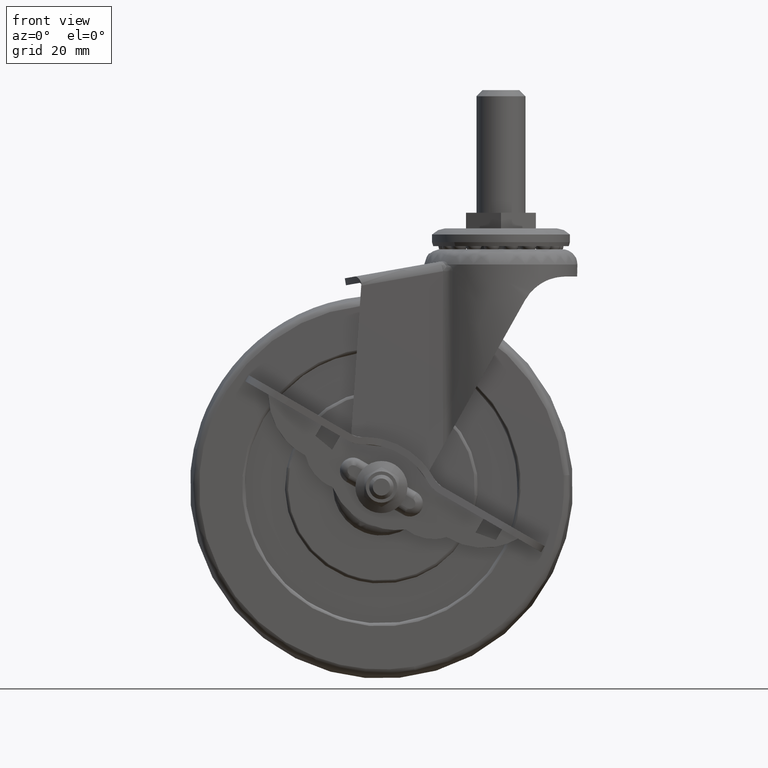
[diagram: clean part render]
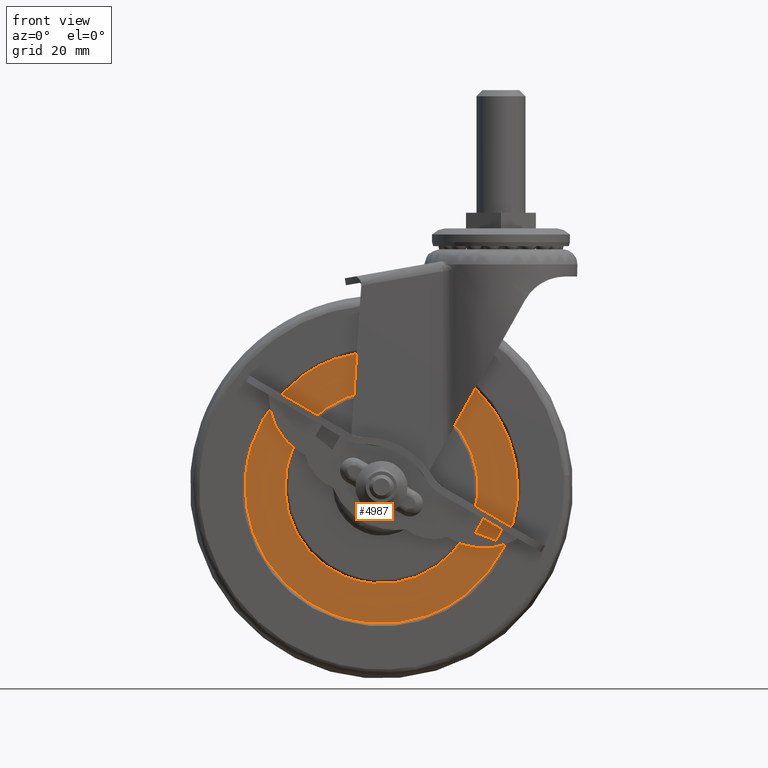
[diagram: same view with one face highlighted and labeled with its STEP entity id]
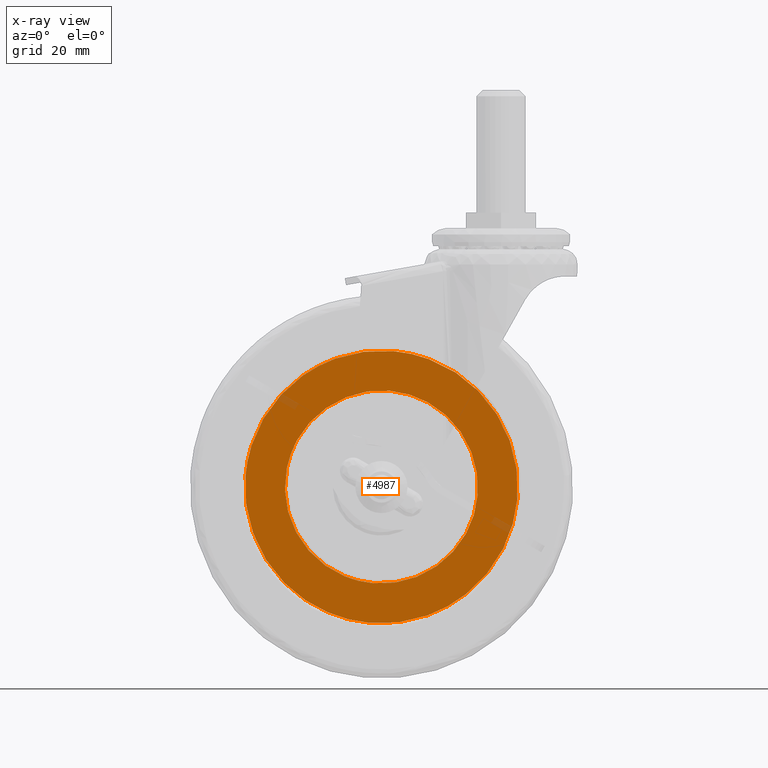
[diagram: x-ray of the same camera — body ghosted, the highlighted face saturated]
A machine part, front view. The second image highlights one B-rep face of the part: STEP entity #4987.
The next image is the same camera in x-ray: the body ghosted, the highlighted face saturated — about 1% of this face is hidden behind the body in this view.
In plain terms, the highlighted face is a freeform B-spline surface patch.
Its self-contained STEP definition (entity closure, byte-faithful):
#967=CARTESIAN_POINT('',(-28.735520388896450,-12.0,33.978225726691122));
#968=VERTEX_POINT('',#967);
#969=CARTESIAN_POINT('',(-44.499999999999950,-12.0,-0.000002025659692));
#970=VERTEX_POINT('',#969);
#971=CARTESIAN_POINT('',(-28.735520388896450,-12.0,33.978225726691122));
#972=CARTESIAN_POINT('',(-29.965539715013300,-12.0,32.938018118806532));
#973=CARTESIAN_POINT('',(-32.532487644261721,-12.0,30.516255705758009));
#974=CARTESIAN_POINT('',(-36.606650024262713,-12.000000000000020,25.637500820333479));
#975=CARTESIAN_POINT('',(-39.758474518303089,-11.999999999999940,20.334086307352070));
#976=CARTESIAN_POINT('',(-42.000666187192749,-12.000000000000030,14.934997992191120));
#977=CARTESIAN_POINT('',(-43.306283589695227,-11.999999999999989,10.589568166401699));
#978=CARTESIAN_POINT('',(-44.260392649026727,-11.999999999999890,5.537453177916100));
#979=CARTESIAN_POINT('',(-44.500080360819290,-12.000000000000210,2.013625735972551));
#980=CARTESIAN_POINT('',(-44.499999999999950,-12.0,-0.000002025659692));
#981=B_SPLINE_CURVE_WITH_KNOTS('',3,(#971,#972,#973,#974,#975,#976,#977,#978,#979,#980),.UNSPECIFIED.,.F.,.U.,(4,1,1,1,1,1,1,4),(0.000000030718532,4.832695679823040,10.571575844374820,19.028858759169861,23.257441116145831,28.090172418240059,32.620865823782083,38.661748231903132),.UNSPECIFIED.);
#982=EDGE_CURVE('',#968,#970,#981,.T.);
#1038=CARTESIAN_POINT('',(30.631778243611230,-12.000000000000011,-32.279159168495703));
#1039=VERTEX_POINT('',#1038);
#1045=CARTESIAN_POINT('',(0.0,-12.0,-44.500000000000000));
#1046=VERTEX_POINT('',#1045);
#1047=CARTESIAN_POINT('',(0.0,-12.0,-44.500000000000000));
#1048=CARTESIAN_POINT('',(2.727479434036369,-12.000000000000020,-44.500295298027403));
#1049=CARTESIAN_POINT('',(6.686564986491137,-11.999999999999980,-44.134819971370852));
#1050=CARTESIAN_POINT('',(12.265564513442420,-12.000000000000041,-42.855539010437852));
#1051=CARTESIAN_POINT('',(16.356506878100181,-11.999999999999931,-41.471537159714082));
#1052=CARTESIAN_POINT('',(20.999493749448501,-12.000000000000060,-39.342050800678393));
#1053=CARTESIAN_POINT('',(25.756969748588642,-11.999999999999959,-36.472671367850083));
#1054=CARTESIAN_POINT('',(29.036343591945538,-12.000000000000060,-33.793311748435393));
#1055=CARTESIAN_POINT('',(30.631778243611230,-12.000000000000011,-32.279159168495703));
#1056=B_SPLINE_CURVE_WITH_KNOTS('',3,(#1047,#1048,#1049,#1050,#1051,#1052,#1053,#1054,#1055),.UNSPECIFIED.,.F.,.U.,(4,1,1,1,1,1,4),(0.000000025192691,8.182366867825625,11.877635466500630,17.156545081447881,21.115785782338349,27.186582004520631,33.785260291606157),.UNSPECIFIED.);
#1057=EDGE_CURVE('',#1046,#1039,#1056,.T.);
#1059=CARTESIAN_POINT('',(-44.499999999999950,-12.0,-0.000002025659692));
#1060=CARTESIAN_POINT('',(-44.500787939339702,-11.999999999999970,-3.458690966359215));
#1061=CARTESIAN_POINT('',(-43.817293084576377,-12.000000000000060,-9.283347984711762));
#1062=CARTESIAN_POINT('',(-41.371711392569743,-11.999999999999909,-16.841196439660902));
#1063=CARTESIAN_POINT('',(-38.680561582878532,-12.000000000000041,-22.228479020489239));
#1064=CARTESIAN_POINT('',(-35.505162946347468,-11.999999999999959,-27.012376599666570));
#1065=CARTESIAN_POINT('',(-31.289106103476001,-12.000000000000030,-31.930968309895920));
#1066=CARTESIAN_POINT('',(-25.467613343913861,-12.000000000000050,-36.798891241400483));
#1067=CARTESIAN_POINT('',(-18.857115077663192,-11.999999999999909,-40.516760081781378));
#1068=CARTESIAN_POINT('',(-12.349703858232321,-11.999999999999959,-42.912831426846360));
#1069=CARTESIAN_POINT('',(-6.189072149615090,-12.000000000000050,-44.216991347357798));
#1070=CARTESIAN_POINT('',(-2.002350392535339,-11.999999999999989,-44.500071016976648));
#1071=CARTESIAN_POINT('',(0.0,-12.0,-44.500000000000000));
#1072=B_SPLINE_CURVE_WITH_KNOTS('',3,(#1059,#1060,#1061,#1062,#1063,#1064,#1065,#1066,#1067,#1068,#1069,#1070,#1071),.UNSPECIFIED.,.F.,.U.,(4,1,1,1,1,1,1,1,1,1,4),(0.000000094294563,10.375858722465660,17.475137372663820,23.755293522343049,28.397143133958728,34.677285312516908,43.141700456231021,51.060162384410617,57.340314205787983,63.893492412745097,69.900545054172909),.UNSPECIFIED.);
#1073=EDGE_CURVE('',#970,#1046,#1072,.T.);
#1096=CARTESIAN_POINT('',(0.0,-12.0,44.500000000000000));
#1097=VERTEX_POINT('',#1096);
#1098=CARTESIAN_POINT('',(0.0,-12.0,44.500000000000000));
#1099=CARTESIAN_POINT('',(-3.172751960191040,-12.000000000000050,44.500603135920642));
#1100=CARTESIAN_POINT('',(-7.484109688765465,-11.999999999999950,44.036887618685739));
#1101=CARTESIAN_POINT('',(-13.160130746784789,-12.000000000000050,42.573611372753113));
#1102=CARTESIAN_POINT('',(-17.686803546340158,-11.999999999999860,40.958362971238252));
#1103=CARTESIAN_POINT('',(-23.150961942849619,-12.000000000000290,38.209039244866148));
#1104=CARTESIAN_POINT('',(-26.872150039924950,-11.999999999999890,35.554324625650793));
#1105=CARTESIAN_POINT('',(-28.735520388896450,-12.0,33.978225726691122));
#1106=B_SPLINE_CURVE_WITH_KNOTS('',3,(#1098,#1099,#1100,#1101,#1102,#1103,#1104,#1105),.UNSPECIFIED.,.F.,.U.,(4,1,1,1,1,4),(0.000000020923153,9.518073679130797,12.934822759918470,17.571813960061309,23.917210121908340,31.238803306923810),.UNSPECIFIED.);
#1107=EDGE_CURVE('',#1097,#968,#1106,.T.);
#1109=CARTESIAN_POINT('',(44.499999999999950,-12.0,0.000002025659025));
#1110=VERTEX_POINT('',#1109);
#1111=CARTESIAN_POINT('',(44.499999999999950,-12.0,0.000002025659025));
#1112=CARTESIAN_POINT('',(44.500433821560122,-11.999999999999980,3.003562087191933));
#1113=CARTESIAN_POINT('',(44.018943277772607,-12.000000000000060,7.736218706904332));
#1114=CARTESIAN_POINT('',(42.467329863769862,-11.999999999999959,13.550031045536381));
#1115=CARTESIAN_POINT('',(40.821851141577987,-12.000000000000060,17.895018599411831));
#1116=CARTESIAN_POINT('',(38.716726042078768,-11.999999999999920,22.141998600648659));
#1117=CARTESIAN_POINT('',(36.180611359067719,-12.000000000000041,26.040189141191501));
#1118=CARTESIAN_POINT('',(33.152460838721829,-11.999999999999950,29.800070867100182));
#1119=CARTESIAN_POINT('',(29.884285735991039,-11.999999999999870,33.108626849428582));
#1120=CARTESIAN_POINT('',(26.112347979232570,-12.000000000000171,36.127422992349629));
#1121=CARTESIAN_POINT('',(21.826961098425500,-12.000000000000060,38.896781037854169));
#1122=CARTESIAN_POINT('',(17.569480204176880,-12.000000000000140,40.990933828182960));
#1123=CARTESIAN_POINT('',(12.422960414138529,-11.999999999999950,42.832370699897382));
#1124=CARTESIAN_POINT('',(6.826166715394748,-12.000000000000030,44.143408598093757));
#1125=CARTESIAN_POINT('',(2.366427712762931,-11.999999999999980,44.500158279687312));
#1126=CARTESIAN_POINT('',(0.0,-12.0,44.500000000000000));
#1127=B_SPLINE_CURVE_WITH_KNOTS('',3,(#1111,#1112,#1113,#1114,#1115,#1116,#1117,#1118,#1119,#1120,#1121,#1122,#1123,#1124,#1125,#1126),.UNSPECIFIED.,.F.,.U.,(4,1,1,1,1,1,1,1,1,1,1,1,1,4),(0.000000094280566,9.010577911483850,14.198544068166390,18.021236851119060,22.936143451512581,28.397143133952738,31.946735641158760,37.407646368778927,42.322550544337261,46.418327835366711,52.698460405748961,56.521163589247188,62.801278966696771,69.900545054173364),.UNSPECIFIED.);
#1128=EDGE_CURVE('',#1110,#1097,#1127,.T.);
#1130=CARTESIAN_POINT('',(30.631778243611230,-12.000000000000011,-32.279159168495703));
#1131=CARTESIAN_POINT('',(32.542142471580433,-12.000000000000030,-30.466600183629559));
#1132=CARTESIAN_POINT('',(36.039612032414048,-11.999999999999970,-26.500963641904491));
#1133=CARTESIAN_POINT('',(39.663660872180053,-12.000000000000030,-20.527157676344491));
#1134=CARTESIAN_POINT('',(41.898204748509428,-11.999999999999980,-15.232978862823330));
#1135=CARTESIAN_POINT('',(43.238877445819043,-12.000000000000041,-10.818409804491861));
#1136=CARTESIAN_POINT('',(44.231984314528923,-11.999999999999901,-5.831072754974961));
#1137=CARTESIAN_POINT('',(44.500127269239137,-12.000000000000130,-2.163157014648283));
#1138=CARTESIAN_POINT('',(44.499999999999950,-12.0,0.000002025659025));
#1139=B_SPLINE_CURVE_WITH_KNOTS('',3,(#1130,#1131,#1132,#1133,#1134,#1135,#1136,#1137,#1138),.UNSPECIFIED.,.F.,.U.,(4,1,1,1,1,1,4),(0.000000028092273,7.900213958705137,15.800449874498121,20.879123877961451,25.111402535385100,29.625826156086632,36.115287898222327),.UNSPECIFIED.);
#1140=EDGE_CURVE('',#1039,#1110,#1139,.T.);
#2373=CARTESIAN_POINT('',(31.500000000000000,-12.000000004647941,-1.421700E-014));
#2374=VERTEX_POINT('',#2373);
#2385=CARTESIAN_POINT('',(0.0,-12.0,31.500000000000000));
#2386=VERTEX_POINT('',#2385);
#2387=CARTESIAN_POINT('',(31.500000000000000,-12.000000004647941,-1.421700E-014));
#2388=CARTESIAN_POINT('',(31.500357756534029,-12.000000004324660,2.190541303238955));
#2389=CARTESIAN_POINT('',(31.054613796104210,-12.000000003697380,6.442593423730356));
#2390=CARTESIAN_POINT('',(29.256097632853130,-12.000000002859419,12.120464694311041));
#2391=CARTESIAN_POINT('',(26.816312558201119,-12.000000002176110,16.752477931802879));
#2392=CARTESIAN_POINT('',(23.942699012179219,-12.000000001600659,20.652155242449851));
#2393=CARTESIAN_POINT('',(20.789241882247730,-12.000000001135341,23.805566394371041));
#2394=CARTESIAN_POINT('',(17.383008344240739,-12.000000000757829,26.364267537846239));
#2395=CARTESIAN_POINT('',(13.633265793132690,-12.000000000439710,28.519036312101878));
#2396=CARTESIAN_POINT('',(9.306110819831222,-12.000000000187210,30.234247160803129));
#2397=CARTESIAN_POINT('',(4.574316783027637,-12.000000000031370,31.281408461885022));
#2398=CARTESIAN_POINT('',(1.481824663737865,-12.000000000001190,31.500056553867150));
#2399=CARTESIAN_POINT('',(0.0,-12.0,31.500000000000000));
#2400=B_SPLINE_CURVE_WITH_KNOTS('',3,(#2387,#2388,#2389,#2390,#2391,#2392,#2393,#2394,#2395,#2396,#2397,#2398,#2399),.UNSPECIFIED.,.F.,.U.,(4,1,1,1,1,1,1,1,1,1,4),(0.000000117604117,6.571548735345758,12.756607351113431,17.781943348559441,22.227417467390872,27.252736703444359,31.118377210937791,34.984018556321132,40.202632627139103,45.034684005373947,49.480161913933387),.UNSPECIFIED.);
#2401=EDGE_CURVE('',#2374,#2386,#2400,.T.);
#2403=CARTESIAN_POINT('',(-31.289316621724410,-12.000000004581430,3.637123223851498));
#2404=VERTEX_POINT('',#2403);
#2405=CARTESIAN_POINT('',(0.0,-12.0,31.500000000000000));
#2406=CARTESIAN_POINT('',(-1.969475217649443,-11.999999999999940,31.500228550211119));
#2407=CARTESIAN_POINT('',(-5.669573474912848,-12.000000000057300,31.151802914676779));
#2408=CARTESIAN_POINT('',(-10.979389414547841,-12.000000000298810,29.682523851784250));
#2409=CARTESIAN_POINT('',(-15.156774334466521,-12.000000000620361,27.727689311115519));
#2410=CARTESIAN_POINT('',(-18.669267831886611,-12.000000000993859,25.455933417077830));
#2411=CARTESIAN_POINT('',(-21.857429755927509,-12.000000001424370,22.836841983617440));
#2412=CARTESIAN_POINT('',(-24.839246643121690,-12.000000001963469,19.558754872195699));
#2413=CARTESIAN_POINT('',(-27.569142870935568,-12.000000002633421,15.484423344664510));
#2414=CARTESIAN_POINT('',(-29.991514514518631,-12.000000003480020,10.335459704511470));
#2415=CARTESIAN_POINT('',(-31.000477333395970,-12.000000004172019,6.127057618576151));
#2416=CARTESIAN_POINT('',(-31.289316621724410,-12.000000004581430,3.637123223851498));
#2417=B_SPLINE_CURVE_WITH_KNOTS('',3,(#2405,#2406,#2407,#2408,#2409,#2410,#2411,#2412,#2413,#2414,#2415,#2416),.UNSPECIFIED.,.F.,.U.,(4,1,1,1,1,1,1,1,1,4),(0.000000098252144,5.908372084472894,11.100636391761951,16.471932076433308,19.694707070591409,23.633563124500391,28.825813469371660,32.943825106592662,38.315130960209871,45.834892213786567),.UNSPECIFIED.);
#2418=EDGE_CURVE('',#2386,#2404,#2417,.T.);
#2483=CARTESIAN_POINT('',(0.0,-12.0,-31.500000000000000));
#2484=VERTEX_POINT('',#2483);
#2485=CARTESIAN_POINT('',(-31.289316621724410,-12.000000004581430,3.637123223851498));
#2486=CARTESIAN_POINT('',(-31.577514678735280,-12.000000004020970,1.163538497947435));
#2487=CARTESIAN_POINT('',(-31.565436175079370,-12.000000003196510,-2.667697770920432));
#2488=CARTESIAN_POINT('',(-30.550795601318281,-12.000000002118989,-8.118854780291210));
#2489=CARTESIAN_POINT('',(-29.115699729876209,-12.000000001350280,-12.322807267614090));
#2490=CARTESIAN_POINT('',(-27.268899704820619,-12.000000000757300,-15.894378983629570));
#2491=CARTESIAN_POINT('',(-25.201543035422510,-12.000000000283340,-19.009607612306020));
#2492=CARTESIAN_POINT('',(-22.572754421467849,-11.999999999859529,-22.144200206925181));
#2493=CARTESIAN_POINT('',(-19.289279107376132,-11.999999999550370,-25.032014057564620));
#2494=CARTESIAN_POINT('',(-15.298549661591700,-11.999999999365251,-27.663994325562729));
#2495=CARTESIAN_POINT('',(-11.147903966258230,-11.999999999342320,-29.608465109709549));
#2496=CARTESIAN_POINT('',(-5.810449690501321,-11.999999999525880,-31.124087575384369));
#2497=CARTESIAN_POINT('',(-2.144394764989468,-11.999999999795000,-31.500334387268971));
#2498=CARTESIAN_POINT('',(0.0,-12.0,-31.500000000000000));
#2499=B_SPLINE_CURVE_WITH_KNOTS('',3,(#2485,#2486,#2487,#2488,#2489,#2490,#2491,#2492,#2493,#2494,#2495,#2496,#2497,#2498),.UNSPECIFIED.,.F.,.U.,(4,1,1,1,1,1,1,1,1,1,1,4),(0.000000135412265,7.470743232409220,11.413656782334970,16.601720932652061,20.752171435270888,23.449899922458641,27.807841805379098,32.995834885900479,36.523718564739120,42.126824459150257,46.692316390623660,53.125434141651183),.UNSPECIFIED.);
#2500=EDGE_CURVE('',#2404,#2484,#2499,.T.);
#2502=CARTESIAN_POINT('',(0.0,-12.0,-31.500000000000000));
#2503=CARTESIAN_POINT('',(2.254990146209646,-11.999999999999970,-31.500405108296128));
#2504=CARTESIAN_POINT('',(5.798303822511795,-12.000000000056289,-31.117792296409981));
#2505=CARTESIAN_POINT('',(10.331844777384600,-12.000000000246080,-29.833055023603681));
#2506=CARTESIAN_POINT('',(14.206806382313710,-12.000000000482689,-28.228126026067581));
#2507=CARTESIAN_POINT('',(17.830834696939799,-12.000000000796639,-26.101054416758000));
#2508=CARTESIAN_POINT('',(21.005670243920150,-12.000000001171630,-23.559925817594721));
#2509=CARTESIAN_POINT('',(23.788029703488910,-12.000000001582110,-20.777651064473829));
#2510=CARTESIAN_POINT('',(26.678829573024110,-12.000000002132120,-17.050204525856639));
#2511=CARTESIAN_POINT('',(29.001689067804850,-12.000000002783009,-12.639678069158940));
#2512=CARTESIAN_POINT('',(30.506963805918939,-12.000000003441530,-8.174464286486895));
#2513=CARTESIAN_POINT('',(31.312696340424829,-12.000000004030790,-4.187735060685819));
#2514=CARTESIAN_POINT('',(31.500058345559840,-12.000000004437799,-1.417384290621191));
#2515=CARTESIAN_POINT('',(31.500000000000000,-12.000000004647941,-1.421700E-014));
#2516=B_SPLINE_CURVE_WITH_KNOTS('',3,(#2502,#2503,#2504,#2505,#2506,#2507,#2508,#2509,#2510,#2511,#2512,#2513,#2514,#2515),.UNSPECIFIED.,.F.,.U.,(4,1,1,1,1,1,1,1,1,1,1,4),(0.000000117608209,6.764863789835786,10.630502004501970,14.109587566991751,19.328206750768249,23.193842395284921,26.286314329343949,31.118377210937769,37.303404004128751,41.169042701405850,45.228012289176043,49.480161913933422),.UNSPECIFIED.);
#2517=EDGE_CURVE('',#2484,#2374,#2516,.T.);
#4968=CARTESIAN_POINT('',(-48.945549827500670,-12.0,-48.945549827500727));
#4969=CARTESIAN_POINT('',(-48.945549827500670,-12.0,48.945552214666762));
#4970=CARTESIAN_POINT('',(48.945552214666691,-12.0,-48.945549827500727));
#4971=CARTESIAN_POINT('',(48.945552214666691,-12.0,48.945552214666762));
#4972=B_SPLINE_SURFACE_WITH_KNOTS('',1,1,((#4968,#4970),(#4969,#4971)),.UNSPECIFIED.,.F.,.F.,.U.,(2,2),(2,2),(0.0,97.891102042167489),(0.0,97.891102042167361),.UNSPECIFIED.);
#4973=ORIENTED_EDGE('',*,*,#1057,.T.);
#4974=ORIENTED_EDGE('',*,*,#1140,.T.);
#4975=ORIENTED_EDGE('',*,*,#1128,.T.);
#4976=ORIENTED_EDGE('',*,*,#1107,.T.);
#4977=ORIENTED_EDGE('',*,*,#982,.T.);
#4978=ORIENTED_EDGE('',*,*,#1073,.T.);
#4979=EDGE_LOOP('',(#4973,#4974,#4975,#4976,#4977,#4978));
#4980=FACE_OUTER_BOUND('',#4979,.T.);
#4981=ORIENTED_EDGE('',*,*,#2517,.F.);
#4982=ORIENTED_EDGE('',*,*,#2500,.F.);
#4983=ORIENTED_EDGE('',*,*,#2418,.F.);
#4984=ORIENTED_EDGE('',*,*,#2401,.F.);
#4985=EDGE_LOOP('',(#4981,#4982,#4983,#4984));
#4986=FACE_BOUND('',#4985,.T.);
#4987=ADVANCED_FACE('',(#4980,#4986),#4972,.F.);